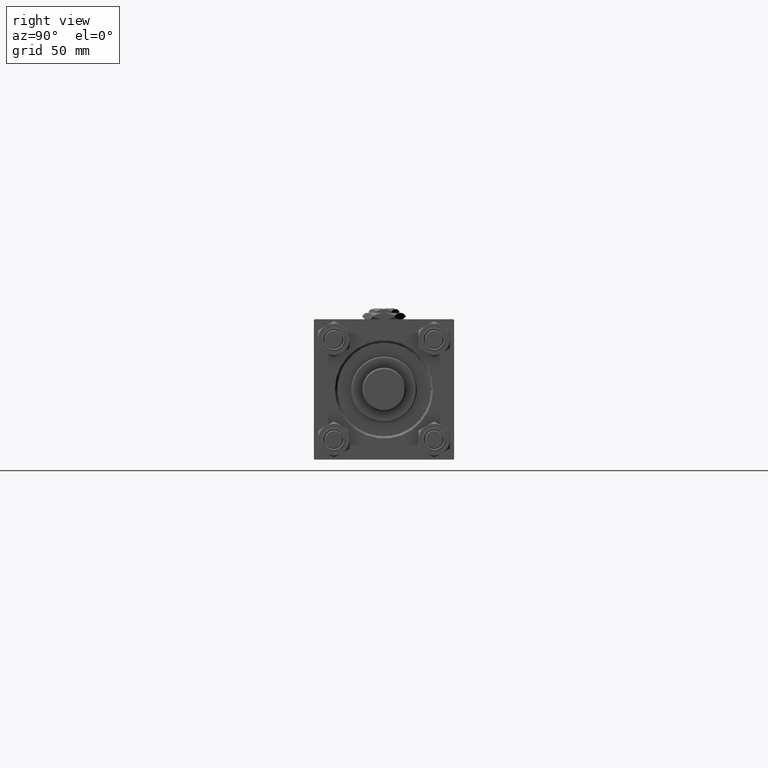
[diagram: clean part render]
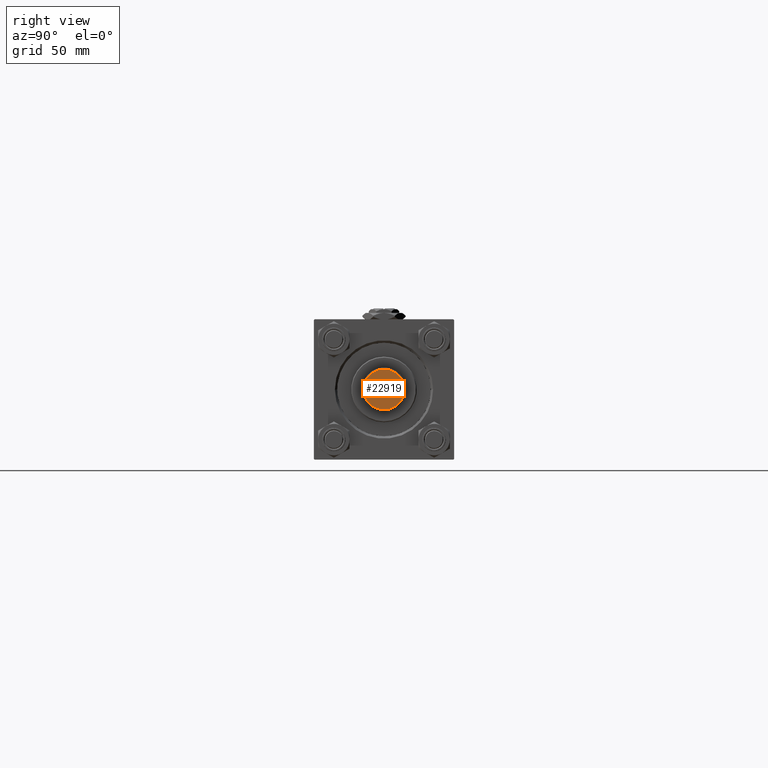
[diagram: same view with one face highlighted and labeled with its STEP entity id]
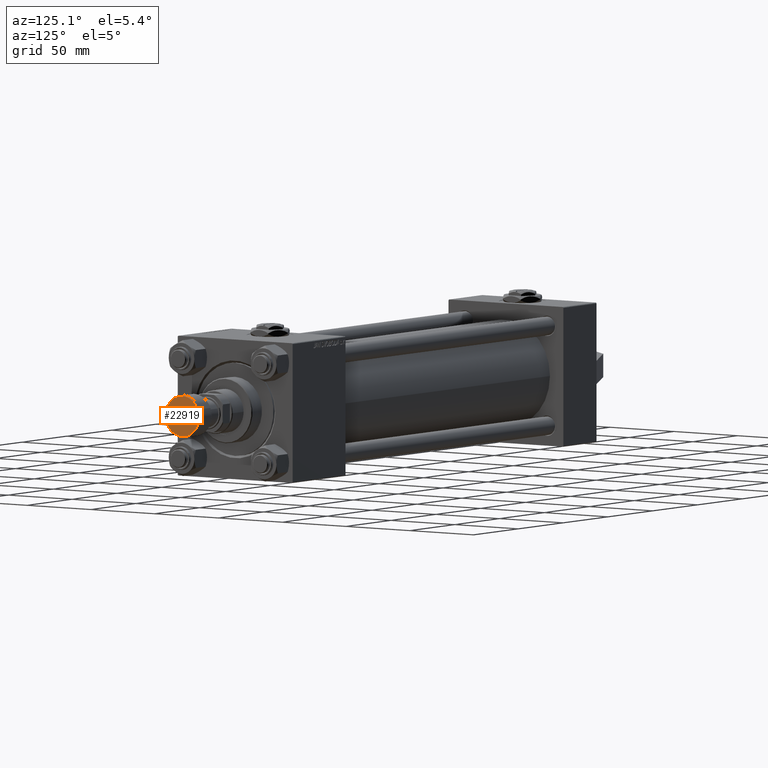
[diagram: same view with one face highlighted and labeled with its STEP entity id]
A machine part, right view. The second image highlights one B-rep face of the part: STEP entity #22919.
A second angle (auxiliary view) of the same face is appended — the face is thin or edge-on in the first view.
In plain terms, the highlighted planar face has unit normal (1, 0, -0).
Its self-contained STEP definition (entity closure, byte-faithful):
#271 = ORIENTED_EDGE ( 'NONE', *, *, #27800, .T. ) ;
#664 = VERTEX_POINT ( 'NONE', #26579 ) ;
#1270 = DIRECTION ( 'NONE',  ( 0.000000000000000000, 0.000000000000000000, 1.000000000000000000 ) ) ;
#6158 = DIRECTION ( 'NONE',  ( 1.000000000000000000, 0.000000000000000000, 0.000000000000000000 ) ) ;
#7524 = CIRCLE ( 'NONE', #9087, 13.00000000000000000 ) ;
#9087 = AXIS2_PLACEMENT_3D ( 'NONE', #39822, #17189, #6158 ) ;
#9109 = DIRECTION ( 'NONE',  ( 1.000000000000000000, 0.000000000000000000, -0.000000000000000000 ) ) ;
#11342 = EDGE_CURVE ( 'NONE', #23042, #664, #29102, .T. ) ;
#11643 = EDGE_LOOP ( 'NONE', ( #40418, #271 ) ) ;
#15758 = CARTESIAN_POINT ( 'NONE',  ( 0.000000000000000000, 0.000000000000000000, 0.000000000000000000 ) ) ;
#15992 = PLANE ( 'NONE',  #24768 ) ;
#17189 = DIRECTION ( 'NONE',  ( 0.000000000000000000, 0.000000000000000000, 1.000000000000000000 ) ) ;
#17273 = AXIS2_PLACEMENT_3D ( 'NONE', #31501, #1270, #23148 ) ;
#19692 = FACE_OUTER_BOUND ( 'NONE', #11643, .T. ) ;
#22919 = ADVANCED_FACE ( 'NONE', ( #19692 ), #15992, .T. ) ;
#23042 = VERTEX_POINT ( 'NONE', #28307 ) ;
#23148 = DIRECTION ( 'NONE',  ( 1.000000000000000000, 0.000000000000000000, 0.000000000000000000 ) ) ;
#24768 = AXIS2_PLACEMENT_3D ( 'NONE', #15758, #35161, #9109 ) ;
#26579 = CARTESIAN_POINT ( 'NONE',  ( -13.00000000000000000, 1.622657008870242882E-15, 0.000000000000000000 ) ) ;
#27800 = EDGE_CURVE ( 'NONE', #664, #23042, #7524, .T. ) ;
#28307 = CARTESIAN_POINT ( 'NONE',  ( 13.00000000000000000, 0.000000000000000000, 0.000000000000000000 ) ) ;
#29102 = CIRCLE ( 'NONE', #17273, 13.00000000000000000 ) ;
#31501 = CARTESIAN_POINT ( 'NONE',  ( 0.000000000000000000, 0.000000000000000000, 0.000000000000000000 ) ) ;
#35161 = DIRECTION ( 'NONE',  ( 0.000000000000000000, 0.000000000000000000, 1.000000000000000000 ) ) ;
#39822 = CARTESIAN_POINT ( 'NONE',  ( 0.000000000000000000, 0.000000000000000000, 0.000000000000000000 ) ) ;
#40418 = ORIENTED_EDGE ( 'NONE', *, *, #11342, .T. ) ;